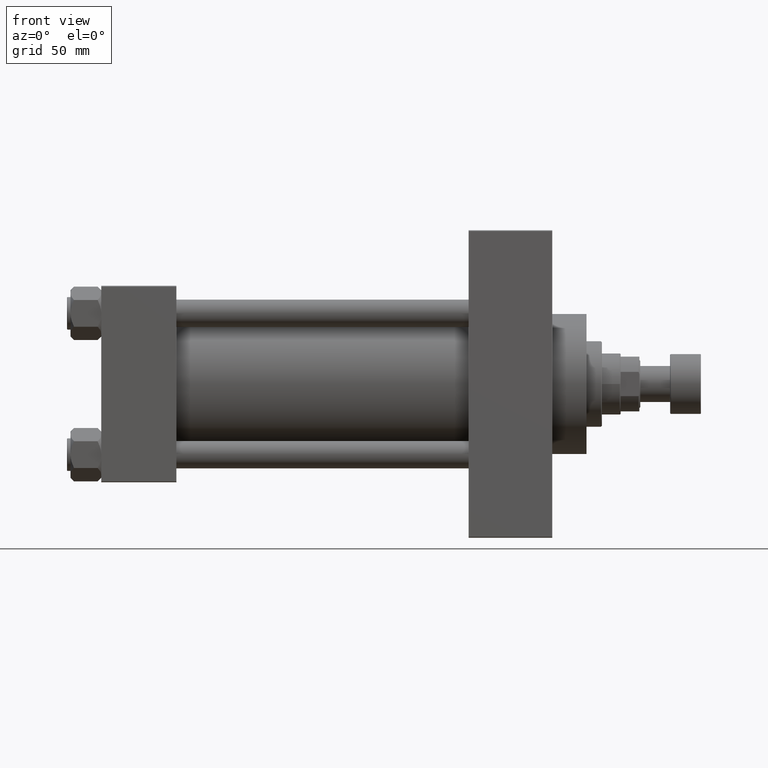
[diagram: clean part render]
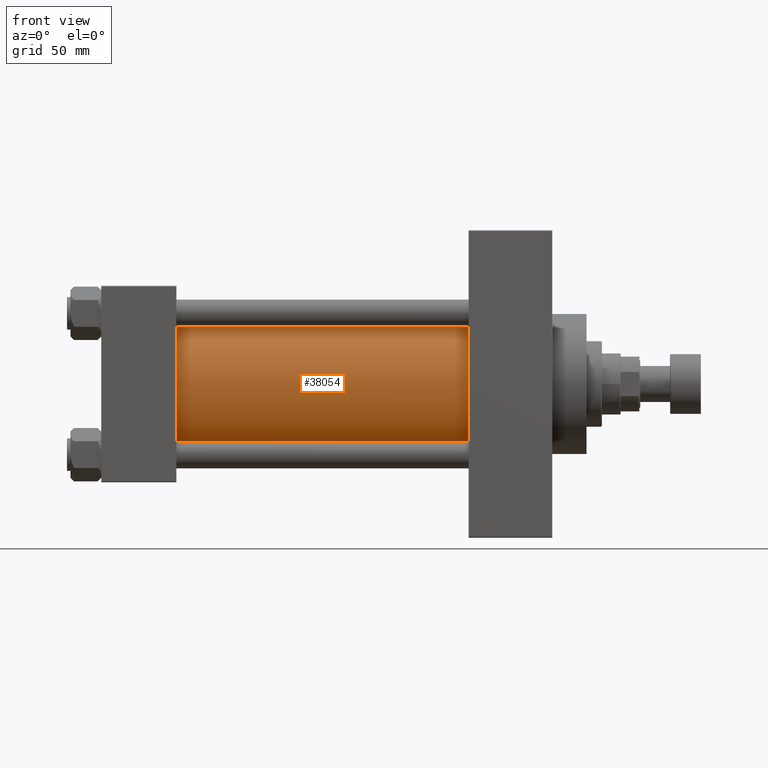
[diagram: same view with one face highlighted and labeled with its STEP entity id]
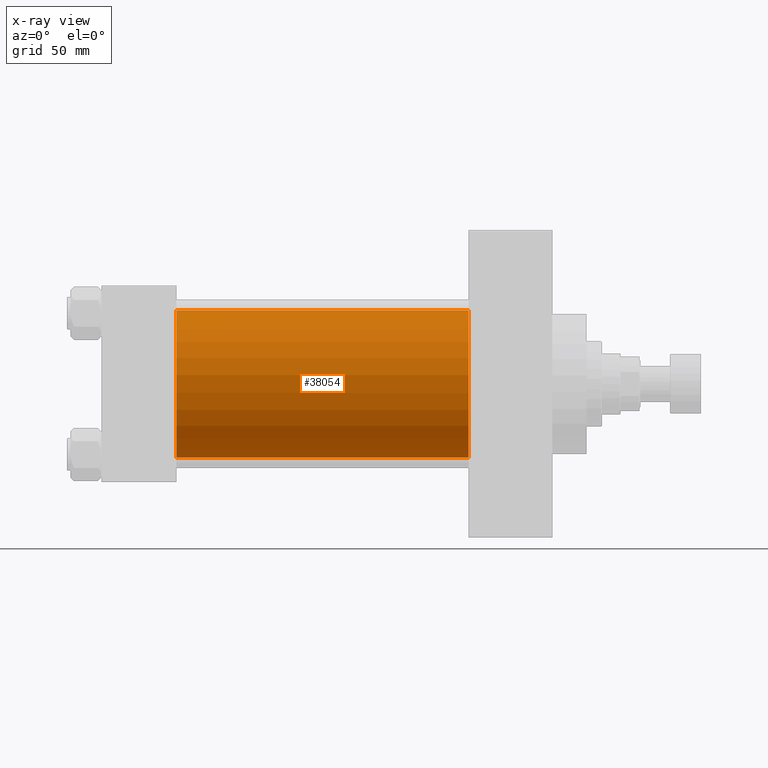
[diagram: x-ray of the same camera — body ghosted, the highlighted face saturated]
A machine part, front view. The second image highlights one B-rep face of the part: STEP entity #38054.
The next image is the same camera in x-ray: the body ghosted, the highlighted face saturated — about 1% of this face is hidden behind the body in this view.
In plain terms, the highlighted cylindrical surface (partial cylindrical patch) has radius 43 mm, axis along (-1, -0, -0).
Its self-contained STEP definition (entity closure, byte-faithful):
#891 = CARTESIAN_POINT ( 'NONE',  ( 43.99999999999998579, -2.602085213965210642E-15, 43.00000000000000000 ) ) ;
#3859 = AXIS2_PLACEMENT_3D ( 'NONE', #23790, #43255, #45928 ) ;
#4031 = VERTEX_POINT ( 'NONE', #891 ) ;
#4959 = LINE ( 'NONE', #46323, #16144 ) ;
#7567 = CIRCLE ( 'NONE', #9089, 43.00000000000000000 ) ;
#8551 = CARTESIAN_POINT ( 'NONE',  ( 215.0000000000000284, 2.663896022368408223E-15, -43.00000000000000000 ) ) ;
#8951 = FACE_OUTER_BOUND ( 'NONE', #10063, .T. ) ;
#9089 = AXIS2_PLACEMENT_3D ( 'NONE', #37778, #11273, #34116 ) ;
#9922 = CYLINDRICAL_SURFACE ( 'NONE', #3859, 43.00000000000000000 ) ;
#10063 = EDGE_LOOP ( 'NONE', ( #17422, #20823, #16183, #43623 ) ) ;
#11273 = DIRECTION ( 'NONE',  ( 1.000000000000000000, 0.000000000000000000, 0.000000000000000000 ) ) ;
#16144 = VECTOR ( 'NONE', #31220, 1000.000000000000000 ) ;
#16183 = ORIENTED_EDGE ( 'NONE', *, *, #19967, .T. ) ;
#17422 = ORIENTED_EDGE ( 'NONE', *, *, #34130, .F. ) ;
#18563 = EDGE_CURVE ( 'NONE', #33030, #32601, #7567, .T. ) ;
#19967 = EDGE_CURVE ( 'NONE', #33030, #4031, #35091, .T. ) ;
#20504 = CARTESIAN_POINT ( 'NONE',  ( 215.0000000000000284, -2.602085213965210642E-15, 43.00000000000000000 ) ) ;
#20823 = ORIENTED_EDGE ( 'NONE', *, *, #18563, .F. ) ;
#22740 = DIRECTION ( 'NONE',  ( 1.000000000000000000, -0.000000000000000000, 0.000000000000000000 ) ) ;
#23790 = CARTESIAN_POINT ( 'NONE',  ( 215.0000000000000284, -2.602085213965210642E-15, 0.000000000000000000 ) ) ;
#24184 = CIRCLE ( 'NONE', #28071, 43.00000000000000000 ) ;
#27387 = CARTESIAN_POINT ( 'NONE',  ( 43.99999999999998579, 2.663896022368408223E-15, -43.00000000000000000 ) ) ;
#28071 = AXIS2_PLACEMENT_3D ( 'NONE', #30272, #22740, #42191 ) ;
#30272 = CARTESIAN_POINT ( 'NONE',  ( 43.99999999999998579, -2.602085213965210642E-15, 0.000000000000000000 ) ) ;
#30497 = CARTESIAN_POINT ( 'NONE',  ( 215.0000000000000284, -2.602085213965210642E-15, 43.00000000000000000 ) ) ;
#31220 = DIRECTION ( 'NONE',  ( -1.000000000000000000, -0.000000000000000000, -0.000000000000000000 ) ) ;
#31349 = VERTEX_POINT ( 'NONE', #27387 ) ;
#32601 = VERTEX_POINT ( 'NONE', #8551 ) ;
#33030 = VERTEX_POINT ( 'NONE', #30497 ) ;
#34116 = DIRECTION ( 'NONE',  ( 0.000000000000000000, 0.000000000000000000, -1.000000000000000000 ) ) ;
#34130 = EDGE_CURVE ( 'NONE', #32601, #31349, #4959, .T. ) ;
#35091 = LINE ( 'NONE', #20504, #46371 ) ;
#37778 = CARTESIAN_POINT ( 'NONE',  ( 215.0000000000000284, -2.602085213965210642E-15, 0.000000000000000000 ) ) ;
#38054 = ADVANCED_FACE ( 'NONE', ( #8951 ), #9922, .T. ) ;
#42191 = DIRECTION ( 'NONE',  ( 0.000000000000000000, 0.000000000000000000, 1.000000000000000000 ) ) ;
#43255 = DIRECTION ( 'NONE',  ( -1.000000000000000000, -0.000000000000000000, -0.000000000000000000 ) ) ;
#43623 = ORIENTED_EDGE ( 'NONE', *, *, #44717, .T. ) ;
#44717 = EDGE_CURVE ( 'NONE', #4031, #31349, #24184, .T. ) ;
#45576 = DIRECTION ( 'NONE',  ( -1.000000000000000000, -0.000000000000000000, -0.000000000000000000 ) ) ;
#45928 = DIRECTION ( 'NONE',  ( 0.000000000000000000, 0.000000000000000000, 1.000000000000000000 ) ) ;
#46323 = CARTESIAN_POINT ( 'NONE',  ( 215.0000000000000284, 2.663896022368408223E-15, -43.00000000000000000 ) ) ;
#46371 = VECTOR ( 'NONE', #45576, 1000.000000000000000 ) ;